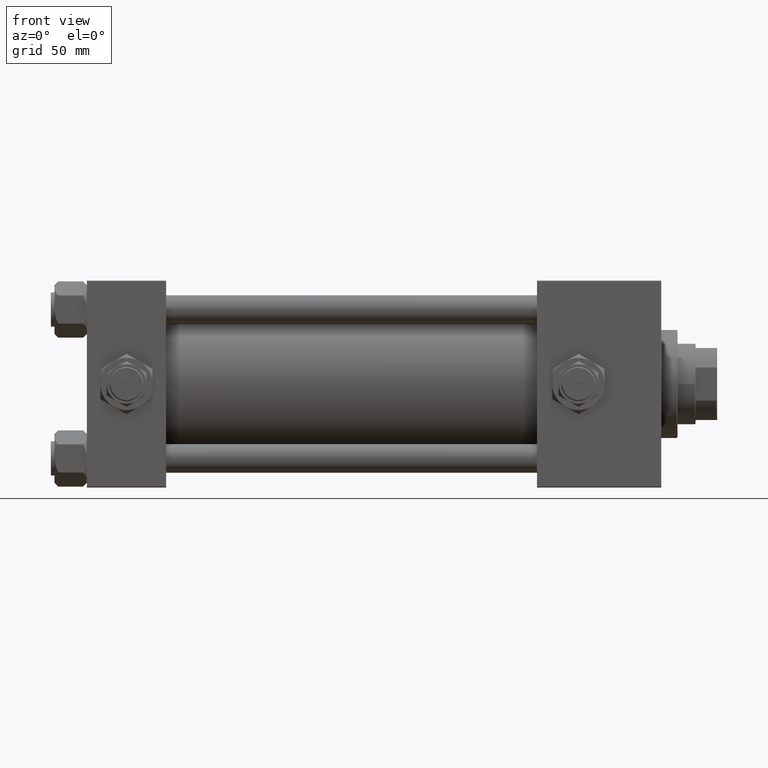
[diagram: clean part render]
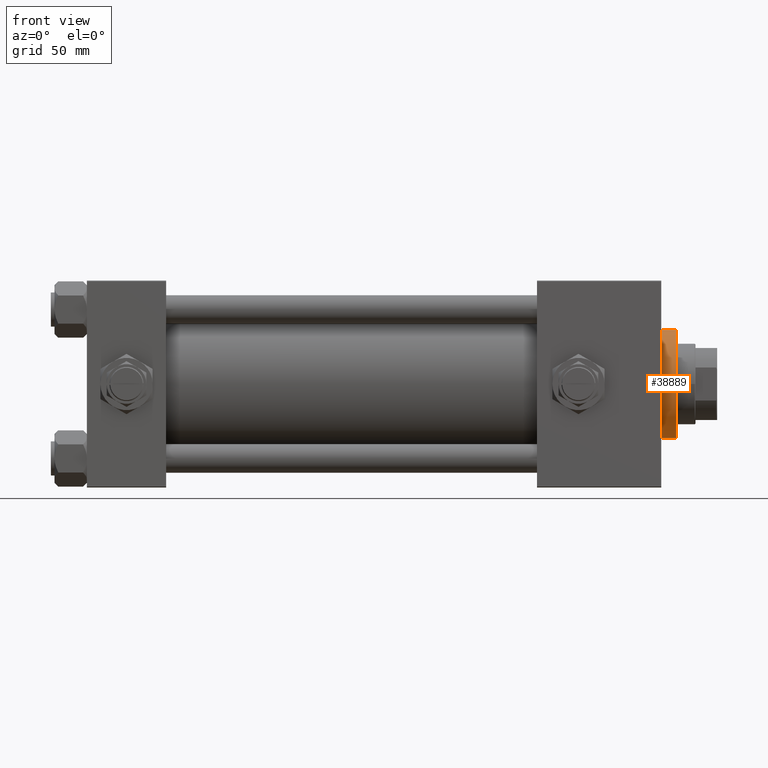
[diagram: same view with one face highlighted and labeled with its STEP entity id]
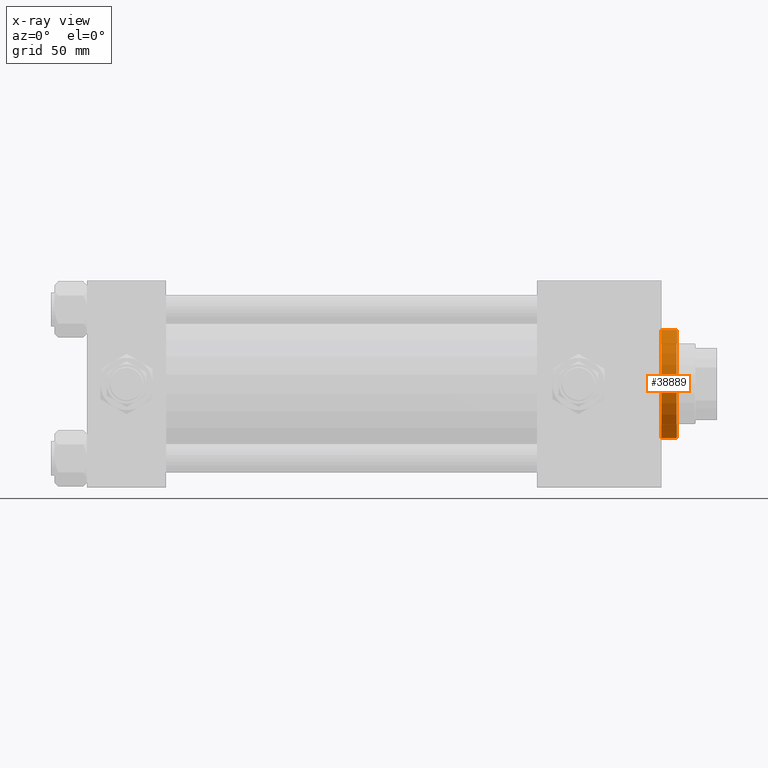
[diagram: x-ray of the same camera — body ghosted, the highlighted face saturated]
A machine part, front view. The second image highlights one B-rep face of the part: STEP entity #38889.
The next image is the same camera in x-ray: the body ghosted, the highlighted face saturated — about 0% of this face is hidden behind the body in this view.
In plain terms, the highlighted cylindrical surface (partial cylindrical patch) has radius 30 mm, axis along (-1, -0, -0).
Its self-contained STEP definition (entity closure, byte-faithful):
#441 = CARTESIAN_POINT ( 'NONE',  ( -30.00000000000000000, 0.000000000000000000, 37.20000000000000284 ) ) ;
#1608 = VERTEX_POINT ( 'NONE', #32223 ) ;
#1852 = AXIS2_PLACEMENT_3D ( 'NONE', #25990, #19027, #34778 ) ;
#2800 = EDGE_LOOP ( 'NONE', ( #38836, #44345, #35852, #44876 ) ) ;
#3320 = DIRECTION ( 'NONE',  ( -1.000000000000000000, 0.000000000000000000, 0.000000000000000000 ) ) ;
#7328 = FACE_OUTER_BOUND ( 'NONE', #2800, .T. ) ;
#9217 = EDGE_CURVE ( 'NONE', #41575, #1608, #17227, .T. ) ;
#10807 = DIRECTION ( 'NONE',  ( -0.000000000000000000, -0.000000000000000000, -1.000000000000000000 ) ) ;
#13880 = AXIS2_PLACEMENT_3D ( 'NONE', #51152, #10807, #3320 ) ;
#14995 = VERTEX_POINT ( 'NONE', #441 ) ;
#15600 = CYLINDRICAL_SURFACE ( 'NONE', #13880, 30.00000000000000000 ) ;
#16967 = LINE ( 'NONE', #24453, #41717 ) ;
#17227 = CIRCLE ( 'NONE', #1852, 30.00000000000000000 ) ;
#19027 = DIRECTION ( 'NONE',  ( 0.000000000000000000, 0.000000000000000000, 1.000000000000000000 ) ) ;
#19801 = LINE ( 'NONE', #24329, #19850 ) ;
#19850 = VECTOR ( 'NONE', #51882, 1000.000000000000000 ) ;
#19941 = EDGE_CURVE ( 'NONE', #30883, #14995, #47340, .T. ) ;
#24329 = CARTESIAN_POINT ( 'NONE',  ( -30.00000000000000000, 0.000000000000000000, 37.69999999999999574 ) ) ;
#24453 = CARTESIAN_POINT ( 'NONE',  ( 30.00000000000000000, 3.673940397442059178E-15, 37.69999999999999574 ) ) ;
#25990 = CARTESIAN_POINT ( 'NONE',  ( 0.000000000000000000, 0.000000000000000000, 28.69999999999999929 ) ) ;
#26111 = DIRECTION ( 'NONE',  ( 0.000000000000000000, 0.000000000000000000, -1.000000000000000000 ) ) ;
#30101 = CARTESIAN_POINT ( 'NONE',  ( 0.000000000000000000, 0.000000000000000000, 37.20000000000000284 ) ) ;
#30883 = VERTEX_POINT ( 'NONE', #41042 ) ;
#32223 = CARTESIAN_POINT ( 'NONE',  ( 30.00000000000000000, 3.673940397442059178E-15, 28.69999999999999929 ) ) ;
#33165 = EDGE_CURVE ( 'NONE', #30883, #1608, #16967, .T. ) ;
#34778 = DIRECTION ( 'NONE',  ( 1.000000000000000000, 0.000000000000000000, 0.000000000000000000 ) ) ;
#35366 = AXIS2_PLACEMENT_3D ( 'NONE', #30101, #26111, #38383 ) ;
#35852 = ORIENTED_EDGE ( 'NONE', *, *, #37963, .T. ) ;
#36988 = DIRECTION ( 'NONE',  ( -0.000000000000000000, -0.000000000000000000, -1.000000000000000000 ) ) ;
#37963 = EDGE_CURVE ( 'NONE', #14995, #41575, #19801, .T. ) ;
#38383 = DIRECTION ( 'NONE',  ( 1.000000000000000000, 0.000000000000000000, 0.000000000000000000 ) ) ;
#38836 = ORIENTED_EDGE ( 'NONE', *, *, #33165, .F. ) ;
#38889 = ADVANCED_FACE ( 'NONE', ( #7328 ), #15600, .T. ) ;
#41042 = CARTESIAN_POINT ( 'NONE',  ( 30.00000000000000000, 3.673940397442059178E-15, 37.20000000000000284 ) ) ;
#41575 = VERTEX_POINT ( 'NONE', #47869 ) ;
#41717 = VECTOR ( 'NONE', #36988, 1000.000000000000000 ) ;
#44345 = ORIENTED_EDGE ( 'NONE', *, *, #19941, .T. ) ;
#44876 = ORIENTED_EDGE ( 'NONE', *, *, #9217, .T. ) ;
#47340 = CIRCLE ( 'NONE', #35366, 30.00000000000000000 ) ;
#47869 = CARTESIAN_POINT ( 'NONE',  ( -30.00000000000000000, 0.000000000000000000, 28.69999999999999929 ) ) ;
#51152 = CARTESIAN_POINT ( 'NONE',  ( 0.000000000000000000, 0.000000000000000000, 37.69999999999999574 ) ) ;
#51882 = DIRECTION ( 'NONE',  ( -0.000000000000000000, -0.000000000000000000, -1.000000000000000000 ) ) ;